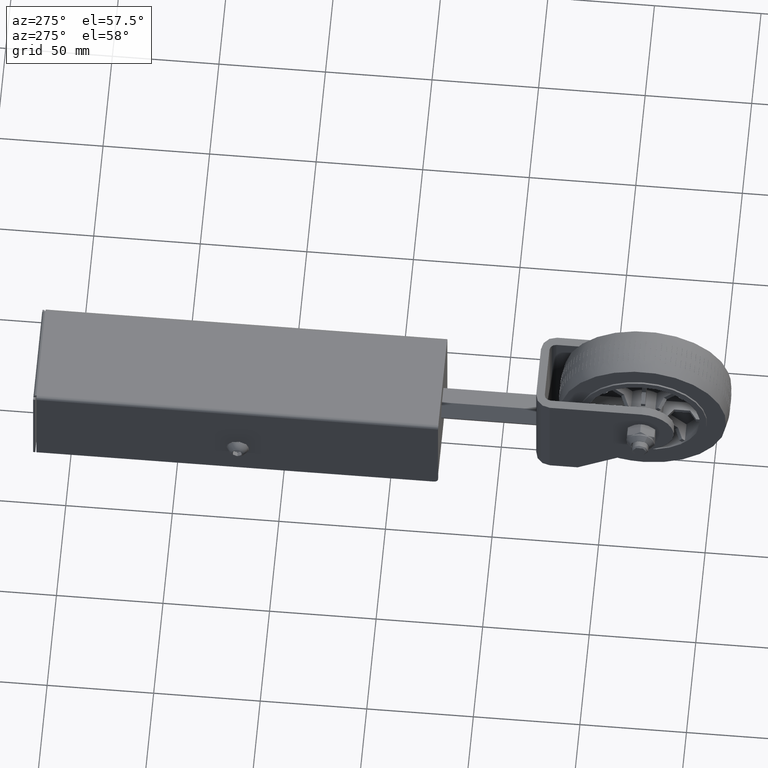
[diagram: clean part render]
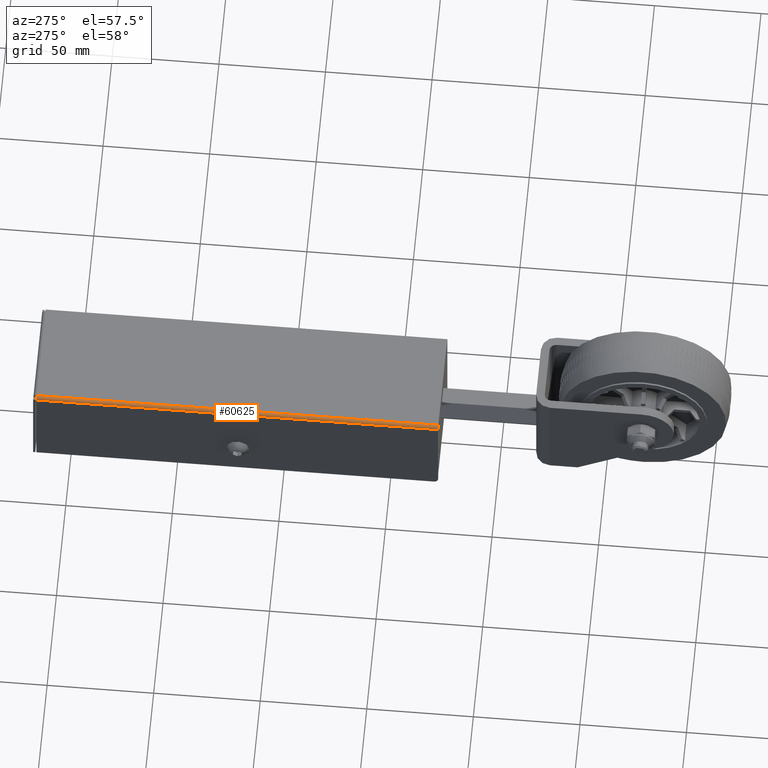
[diagram: same view with one face highlighted and labeled with its STEP entity id]
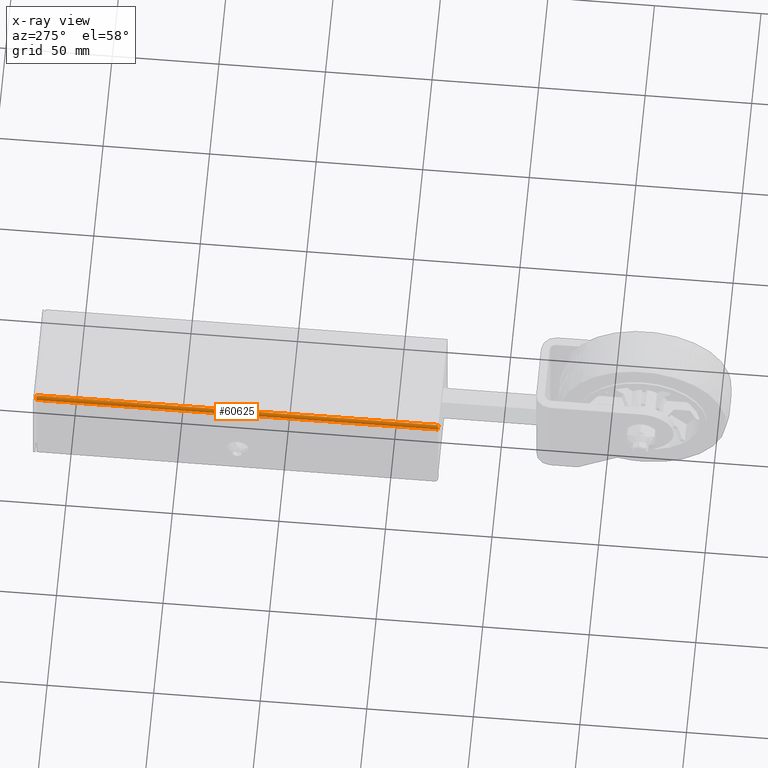
[diagram: x-ray of the same camera — body ghosted, the highlighted face saturated]
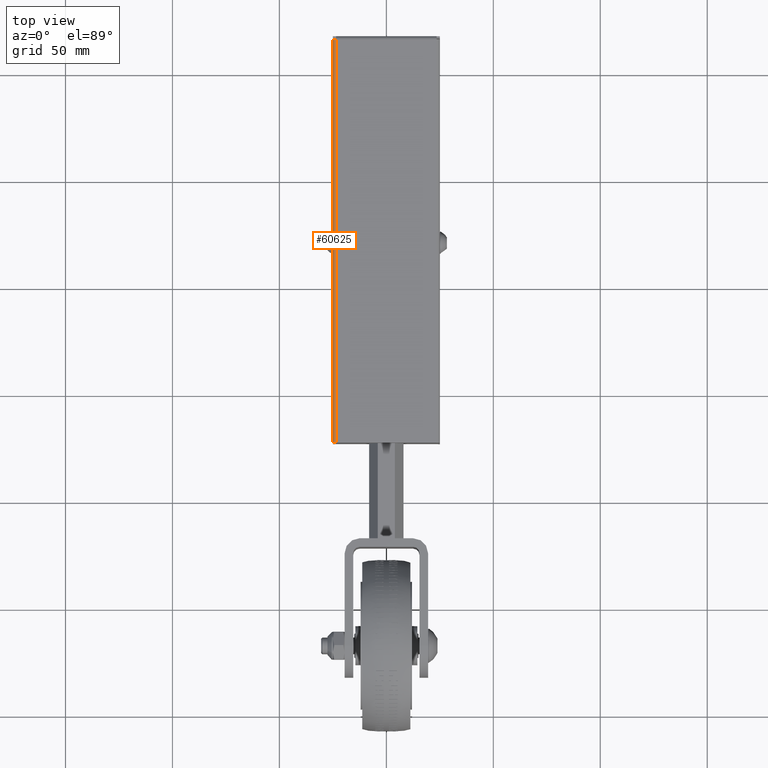
[diagram: same view with one face highlighted and labeled with its STEP entity id]
A machine part, auxiliary view. The second image highlights one B-rep face of the part: STEP entity #60625.
The next image is the same camera in x-ray: the body ghosted, the highlighted face saturated — about 0% of this face is hidden behind the body in this view.
A second angle (top view) of the same face is appended — the face is thin or edge-on in the first view.
In plain terms, the highlighted cylindrical surface (edge-blend (fillet) strip) has radius 1.5 mm, axis along (0, 1, -0).
Its self-contained STEP definition (entity closure, byte-faithful):
#148 = EDGE_CURVE ( 'NONE', #54731, #33768, #12292, .T. ) ;
#255 = AXIS2_PLACEMENT_3D ( 'NONE', #549, #72667, #66812 ) ;
#549 = CARTESIAN_POINT ( 'NONE',  ( -23.50000000000000000, 93.50000000000000000, -0.5000000000000213200 ) ) ;
#6849 = EDGE_CURVE ( 'NONE', #22299, #54731, #34992, .T. ) ;
#7641 = ORIENTED_EDGE ( 'NONE', *, *, #148, .F. ) ;
#8439 = CARTESIAN_POINT ( 'NONE',  ( -25.00000000000000000, -95.00000000000000000, -0.4999999999999935100 ) ) ;
#9447 = DIRECTION ( 'NONE',  ( 0.0000000000000000000, 0.0000000000000000000, 1.000000000000000000 ) ) ;
#9875 = CARTESIAN_POINT ( 'NONE',  ( -23.50000000000000000, 93.50000000000000000, 0.9999999999999800200 ) ) ;
#11496 = ORIENTED_EDGE ( 'NONE', *, *, #59454, .T. ) ;
#12292 = LINE ( 'NONE', #9875, #73969 ) ;
#13315 = VECTOR ( 'NONE', #45256, 1000.000000000000000 ) ;
#15162 = DIRECTION ( 'NONE',  ( 0.0000000000000000000, -1.000000000000000000, 1.084202172485495900E-016 ) ) ;
#19366 = ORIENTED_EDGE ( 'NONE', *, *, #60443, .F. ) ;
#22299 = VERTEX_POINT ( 'NONE', #59851 ) ;
#24134 = CYLINDRICAL_SURFACE ( 'NONE', #255, 1.500000000000001300 ) ;
#25296 = CARTESIAN_POINT ( 'NONE',  ( -23.50000000000000000, 93.50000000000000000, 0.9999999999999800200 ) ) ;
#26566 = LINE ( 'NONE', #8439, #13315 ) ;
#27413 = CARTESIAN_POINT ( 'NONE',  ( -23.50000000000000000, 93.50000000000000000, -0.5000000000000213200 ) ) ;
#33005 = DIRECTION ( 'NONE',  ( -0.0000000000000000000, 1.000000000000000000, -1.084202172485495900E-016 ) ) ;
#33768 = VERTEX_POINT ( 'NONE', #66744 ) ;
#34706 = AXIS2_PLACEMENT_3D ( 'NONE', #57515, #46657, #46401 ) ;
#34992 = CIRCLE ( 'NONE', #64136, 1.500000000000000400 ) ;
#41107 = FACE_OUTER_BOUND ( 'NONE', #53504, .T. ) ;
#42598 = CARTESIAN_POINT ( 'NONE',  ( -25.00000000000000000, -95.00000000000000000, -0.4999999999999935100 ) ) ;
#45256 = DIRECTION ( 'NONE',  ( -3.001814823162472300E-032, -1.000000000000000000, 1.288388788523889100E-016 ) ) ;
#46401 = DIRECTION ( 'NONE',  ( 0.0000000000000000000, 0.0000000000000000000, 1.000000000000000000 ) ) ;
#46657 = DIRECTION ( 'NONE',  ( 0.0000000000000000000, -1.000000000000000000, 1.084202172485495900E-016 ) ) ;
#49787 = VERTEX_POINT ( 'NONE', #42598 ) ;
#53504 = EDGE_LOOP ( 'NONE', ( #7641, #70719, #11496, #19366 ) ) ;
#54044 = CIRCLE ( 'NONE', #34706, 1.500000000000000400 ) ;
#54731 = VERTEX_POINT ( 'NONE', #25296 ) ;
#57515 = CARTESIAN_POINT ( 'NONE',  ( -23.50000000000000000, -95.00000000000000000, -0.5000000000000004400 ) ) ;
#59454 = EDGE_CURVE ( 'NONE', #22299, #49787, #26566, .T. ) ;
#59851 = CARTESIAN_POINT ( 'NONE',  ( -25.00000000000000000, 93.50000000000000000, -0.5000000000000213200 ) ) ;
#60443 = EDGE_CURVE ( 'NONE', #33768, #49787, #54044, .T. ) ;
#60625 = ADVANCED_FACE ( 'NONE', ( #41107 ), #24134, .T. ) ;
#64136 = AXIS2_PLACEMENT_3D ( 'NONE', #27413, #33005, #9447 ) ;
#66744 = CARTESIAN_POINT ( 'NONE',  ( -23.50000000000000000, -95.00000000000000000, 1.000000000000000900 ) ) ;
#66812 = DIRECTION ( 'NONE',  ( -1.000000000000000000, 0.0000000000000000000, 3.469446951953611000E-015 ) ) ;
#70719 = ORIENTED_EDGE ( 'NONE', *, *, #6849, .F. ) ;
#72667 = DIRECTION ( 'NONE',  ( -0.0000000000000000000, 1.000000000000000000, -1.084202172485495900E-016 ) ) ;
#73969 = VECTOR ( 'NONE', #15162, 1000.000000000000000 ) ;